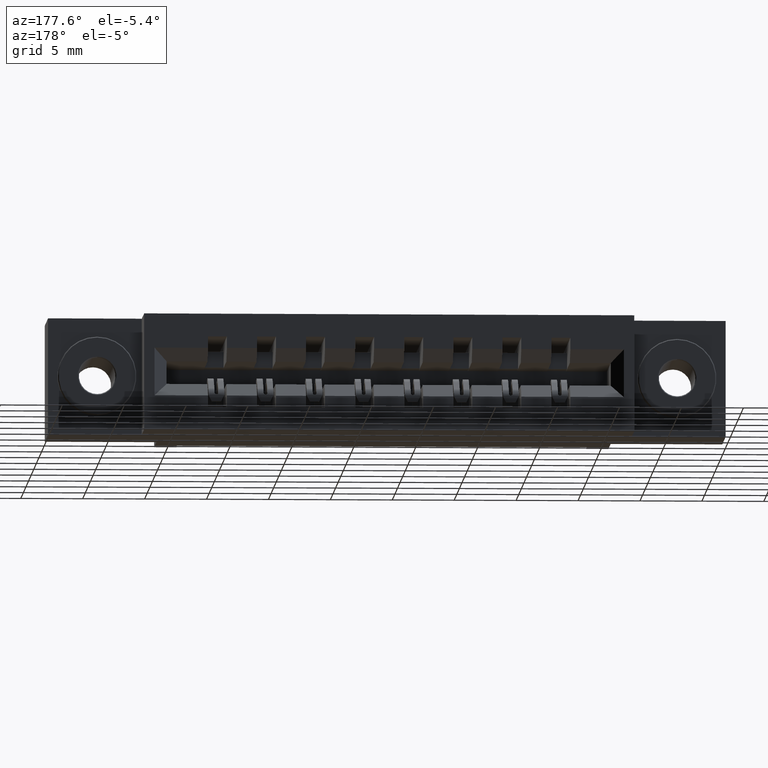
[diagram: clean part render]
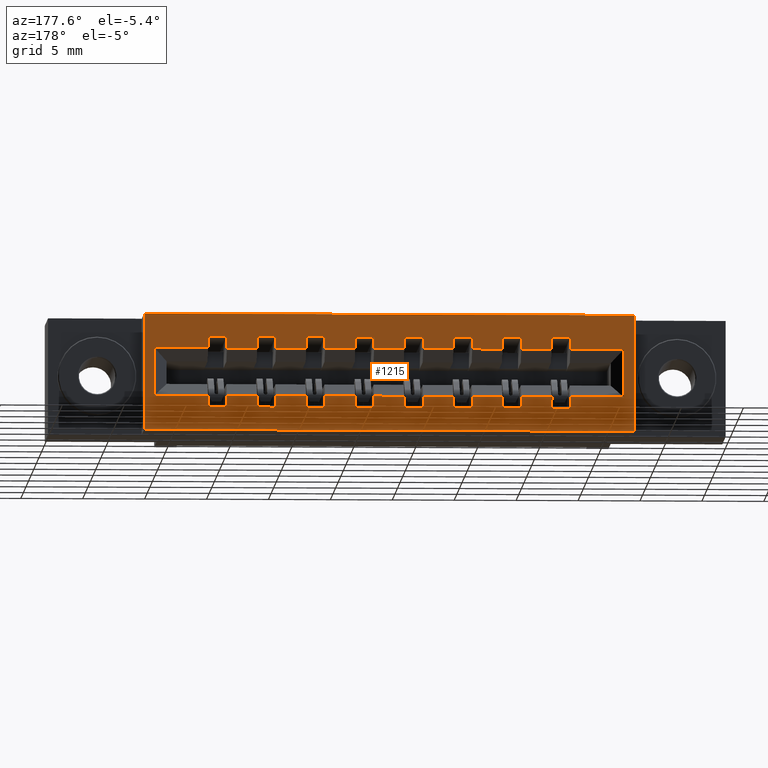
[diagram: same view with one face highlighted and labeled with its STEP entity id]
A machine part, auxiliary view. The second image highlights one B-rep face of the part: STEP entity #1215.
In plain terms, the highlighted planar face has unit normal (0, -1, 0).
Its self-contained STEP definition (entity closure, byte-faithful):
#3 = VECTOR ( 'NONE', #5139, 39.37007874015748100 ) ;
#48 = LINE ( 'NONE', #8474, #715 ) ;
#62 = VERTEX_POINT ( 'NONE', #8847 ) ;
#126 = EDGE_CURVE ( 'NONE', #4012, #3875, #7335, .T. ) ;
#163 = LINE ( 'NONE', #10531, #7812 ) ;
#185 = VECTOR ( 'NONE', #8187, 39.37007874015748100 ) ;
#231 = CARTESIAN_POINT ( 'NONE',  ( 0.5610000000000000500, 0.5999999999999999800, -0.2974999999999999900 ) ) ;
#239 = VECTOR ( 'NONE', #10000, 39.37007874015748100 ) ;
#279 = VERTEX_POINT ( 'NONE', #9263 ) ;
#280 = CARTESIAN_POINT ( 'NONE',  ( 0.0000000000000000000, 0.5999999999999999800, -0.2609999999999999000 ) ) ;
#304 = LINE ( 'NONE', #1450, #2215 ) ;
#322 = CARTESIAN_POINT ( 'NONE',  ( 1.823000000000000000, 0.5999999999999999800, -0.1090000000000002600 ) ) ;
#323 = FACE_BOUND ( 'NONE', #4816, .T. ) ;
#335 = ORIENTED_EDGE ( 'NONE', *, *, #2380, .T. ) ;
#343 = LINE ( 'NONE', #7358, #4155 ) ;
#391 = VERTEX_POINT ( 'NONE', #2153 ) ;
#420 = VERTEX_POINT ( 'NONE', #9855 ) ;
#427 = DIRECTION ( 'NONE',  ( 1.000000000000000000, -0.0000000000000000000, -0.0000000000000000000 ) ) ;
#478 = VECTOR ( 'NONE', #1951, 39.37007874015748100 ) ;
#489 = EDGE_CURVE ( 'NONE', #5118, #1441, #1696, .T. ) ;
#494 = CARTESIAN_POINT ( 'NONE',  ( 0.0000000000000000000, 0.5999999999999999800, -0.2609999999999999000 ) ) ;
#498 = LINE ( 'NONE', #6464, #239 ) ;
#504 = DIRECTION ( 'NONE',  ( 0.0000000000000000000, 0.0000000000000000000, 1.000000000000000000 ) ) ;
#538 = CARTESIAN_POINT ( 'NONE',  ( 0.5610000000000000500, 0.5999999999999999800, -0.2974999999999999900 ) ) ;
#548 = VERTEX_POINT ( 'NONE', #8778 ) ;
#582 = VERTEX_POINT ( 'NONE', #2842 ) ;
#588 = EDGE_CURVE ( 'NONE', #5592, #2311, #10157, .T. ) ;
#598 = DIRECTION ( 'NONE',  ( 0.0000000000000000000, 0.0000000000000000000, 1.000000000000000000 ) ) ;
#611 = DIRECTION ( 'NONE',  ( 0.0000000000000000000, 0.0000000000000000000, 1.000000000000000000 ) ) ;
#622 = CARTESIAN_POINT ( 'NONE',  ( 1.280999999999999700, 0.5999999999999999800, -0.07249999999999996700 ) ) ;
#673 = DIRECTION ( 'NONE',  ( 1.000000000000000000, 0.0000000000000000000, 0.0000000000000000000 ) ) ;
#678 = VECTOR ( 'NONE', #8271, 39.37007874015748100 ) ;
#691 = VECTOR ( 'NONE', #10344, 39.37007874015748100 ) ;
#698 = VERTEX_POINT ( 'NONE', #322 ) ;
#703 = LINE ( 'NONE', #6606, #8365 ) ;
#715 = VECTOR ( 'NONE', #11077, 39.37007874015748100 ) ;
#726 = EDGE_CURVE ( 'NONE', #985, #62, #4827, .T. ) ;
#737 = DIRECTION ( 'NONE',  ( 1.000000000000000000, -0.0000000000000000000, -0.0000000000000000000 ) ) ;
#770 = DIRECTION ( 'NONE',  ( 0.0000000000000000000, -0.0000000000000000000, -1.000000000000000000 ) ) ;
#803 = CARTESIAN_POINT ( 'NONE',  ( 0.8129999999999999400, 0.5999999999999999800, -0.2609999999999999500 ) ) ;
#816 = VECTOR ( 'NONE', #5092, 39.37007874015748100 ) ;
#826 = LINE ( 'NONE', #5257, #5329 ) ;
#835 = LINE ( 'NONE', #8730, #1118 ) ;
#858 = CARTESIAN_POINT ( 'NONE',  ( 0.9689999999999998600, 0.5999999999999999800, -0.07249999999999998100 ) ) ;
#867 = VECTOR ( 'NONE', #5861, 39.37007874015748100 ) ;
#899 = VERTEX_POINT ( 'NONE', #977 ) ;
#907 = ORIENTED_EDGE ( 'NONE', *, *, #2684, .T. ) ;
#911 = VERTEX_POINT ( 'NONE', #6216 ) ;
#931 = CARTESIAN_POINT ( 'NONE',  ( 0.5610000000000000500, 0.5999999999999999800, -0.07250000000000000900 ) ) ;
#977 = CARTESIAN_POINT ( 'NONE',  ( 1.340999999999999700, 0.5999999999999999800, -0.07249999999999996700 ) ) ;
#985 = VERTEX_POINT ( 'NONE', #4780 ) ;
#1008 = LINE ( 'NONE', #7436, #6475 ) ;
#1043 = CARTESIAN_POINT ( 'NONE',  ( 1.184999999999999800, 0.5999999999999999800, -0.2974999999999999900 ) ) ;
#1070 = CARTESIAN_POINT ( 'NONE',  ( 0.6570000000000000300, 0.5999999999999999800, -0.2974999999999999900 ) ) ;
#1109 = CARTESIAN_POINT ( 'NONE',  ( 0.5010000000000001100, 0.5999999999999999800, -0.2974999999999999900 ) ) ;
#1118 = VECTOR ( 'NONE', #9680, 39.37007874015748100 ) ;
#1122 = CARTESIAN_POINT ( 'NONE',  ( 1.496999999999999900, 0.5999999999999999800, -0.2609999999999999500 ) ) ;
#1125 = VECTOR ( 'NONE', #6075, 39.37007874015748100 ) ;
#1158 = EDGE_CURVE ( 'NONE', #8290, #6761, #4557, .T. ) ;
#1173 = DIRECTION ( 'NONE',  ( 0.0000000000000000000, 0.0000000000000000000, 1.000000000000000000 ) ) ;
#1175 = VECTOR ( 'NONE', #6356, 39.37007874015748100 ) ;
#1177 = VERTEX_POINT ( 'NONE', #3393 ) ;
#1178 = CARTESIAN_POINT ( 'NONE',  ( 0.0000000000000000000, 0.5999999999999999800, 0.0000000000000000000 ) ) ;
#1205 = DIRECTION ( 'NONE',  ( 0.0000000000000000000, 0.0000000000000000000, 1.000000000000000000 ) ) ;
#1215 = ADVANCED_FACE ( 'NONE', ( #6591, #323 ), #6834, .F. ) ;
#1221 = EDGE_CURVE ( 'NONE', #4046, #899, #9073, .T. ) ;
#1228 = VERTEX_POINT ( 'NONE', #6874 ) ;
#1245 = LINE ( 'NONE', #6741, #6455 ) ;
#1344 = DIRECTION ( 'NONE',  ( 0.0000000000000000000, 0.0000000000000000000, 1.000000000000000000 ) ) ;
#1441 = VERTEX_POINT ( 'NONE', #7391 ) ;
#1450 = CARTESIAN_POINT ( 'NONE',  ( 0.0000000000000000000, 0.5999999999999999800, -0.2609999999999999000 ) ) ;
#1457 = LINE ( 'NONE', #9476, #3363 ) ;
#1458 = VERTEX_POINT ( 'NONE', #8284 ) ;
#1471 = VERTEX_POINT ( 'NONE', #3074 ) ;
#1482 = VERTEX_POINT ( 'NONE', #7762 ) ;
#1577 = CARTESIAN_POINT ( 'NONE',  ( 0.0000000000000000000, 0.5999999999999999800, -0.3700000000000001600 ) ) ;
#1585 = ORIENTED_EDGE ( 'NONE', *, *, #6827, .F. ) ;
#1616 = EDGE_CURVE ( 'NONE', #8971, #8332, #1245, .T. ) ;
#1634 = ORIENTED_EDGE ( 'NONE', *, *, #9557, .F. ) ;
#1696 = LINE ( 'NONE', #5056, #867 ) ;
#1700 = DIRECTION ( 'NONE',  ( 0.0000000000000000000, 0.0000000000000000000, 1.000000000000000000 ) ) ;
#1715 = CARTESIAN_POINT ( 'NONE',  ( 0.7170000000000000800, 0.5999999999999999800, -0.2974999999999999900 ) ) ;
#1718 = CARTESIAN_POINT ( 'NONE',  ( 1.340999999999999700, 0.5999999999999999800, -0.2974999999999999900 ) ) ;
#1773 = CARTESIAN_POINT ( 'NONE',  ( 0.8129999999999999400, 0.5999999999999999800, -0.2974999999999999900 ) ) ;
#1782 = VERTEX_POINT ( 'NONE', #8254 ) ;
#1809 = DIRECTION ( 'NONE',  ( 0.0000000000000000000, 0.0000000000000000000, 1.000000000000000000 ) ) ;
#1827 = CARTESIAN_POINT ( 'NONE',  ( 0.5010000000000001100, 0.5999999999999999800, -0.2974999999999999900 ) ) ;
#1834 = CARTESIAN_POINT ( 'NONE',  ( 1.437000000000000100, 0.5999999999999999800, -0.2609999999999999500 ) ) ;
#1842 = EDGE_CURVE ( 'NONE', #698, #8290, #2073, .T. ) ;
#1847 = VERTEX_POINT ( 'NONE', #5863 ) ;
#1866 = CARTESIAN_POINT ( 'NONE',  ( 1.437000000000000100, 0.5999999999999999800, -0.07249999999999995300 ) ) ;
#1935 = VERTEX_POINT ( 'NONE', #7193 ) ;
#1951 = DIRECTION ( 'NONE',  ( 1.000000000000000000, -0.0000000000000000000, -0.0000000000000000000 ) ) ;
#1956 = CARTESIAN_POINT ( 'NONE',  ( 0.0000000000000000000, 0.5999999999999999800, -0.1090000000000002600 ) ) ;
#1996 = EDGE_CURVE ( 'NONE', #1471, #10895, #304, .T. ) ;
#2025 = ORIENTED_EDGE ( 'NONE', *, *, #6457, .T. ) ;
#2052 = LINE ( 'NONE', #10333, #3 ) ;
#2073 = LINE ( 'NONE', #9712, #2884 ) ;
#2108 = LINE ( 'NONE', #8137, #3180 ) ;
#2153 = CARTESIAN_POINT ( 'NONE',  ( 1.653000000000000000, 0.5999999999999999800, -0.2974999999999999300 ) ) ;
#2161 = LINE ( 'NONE', #8152, #10732 ) ;
#2174 = DIRECTION ( 'NONE',  ( -1.000000000000000000, 0.0000000000000000000, 0.0000000000000000000 ) ) ;
#2189 = VECTOR ( 'NONE', #9440, 39.37007874015748100 ) ;
#2215 = VECTOR ( 'NONE', #11228, 39.37007874015748100 ) ;
#2242 = LINE ( 'NONE', #9684, #10683 ) ;
#2256 = EDGE_CURVE ( 'NONE', #9944, #2812, #10254, .T. ) ;
#2260 = ORIENTED_EDGE ( 'NONE', *, *, #5841, .T. ) ;
#2267 = DIRECTION ( 'NONE',  ( 1.000000000000000000, -0.0000000000000000000, -0.0000000000000000000 ) ) ;
#2290 = DIRECTION ( 'NONE',  ( -0.0000000000000000000, -0.0000000000000000000, 1.000000000000000000 ) ) ;
#2311 = VERTEX_POINT ( 'NONE', #8000 ) ;
#2312 = LINE ( 'NONE', #7454, #2189 ) ;
#2345 = VECTOR ( 'NONE', #8401, 39.37007874015748100 ) ;
#2358 = VECTOR ( 'NONE', #7739, 39.37007874015748100 ) ;
#2361 = VECTOR ( 'NONE', #10820, 39.37007874015748100 ) ;
#2378 = CARTESIAN_POINT ( 'NONE',  ( 1.280999999999999700, 0.5999999999999999800, -0.2974999999999999900 ) ) ;
#2380 = EDGE_CURVE ( 'NONE', #4088, #5543, #9056, .T. ) ;
#2384 = LINE ( 'NONE', #4174, #4165 ) ;
#2402 = ORIENTED_EDGE ( 'NONE', *, *, #4718, .F. ) ;
#2408 = ORIENTED_EDGE ( 'NONE', *, *, #4470, .T. ) ;
#2439 = CARTESIAN_POINT ( 'NONE',  ( 1.593000000000000200, 0.5999999999999999800, -0.07249999999999993900 ) ) ;
#2462 = CARTESIAN_POINT ( 'NONE',  ( 0.9689999999999998600, 0.5999999999999999800, -0.2974999999999999900 ) ) ;
#2465 = ORIENTED_EDGE ( 'NONE', *, *, #6482, .T. ) ;
#2466 = VECTOR ( 'NONE', #1205, 39.37007874015748100 ) ;
#2476 = VERTEX_POINT ( 'NONE', #9833 ) ;
#2481 = VECTOR ( 'NONE', #9724, 39.37007874015748100 ) ;
#2497 = LINE ( 'NONE', #11246, #1125 ) ;
#2546 = ORIENTED_EDGE ( 'NONE', *, *, #8787, .F. ) ;
#2548 = LINE ( 'NONE', #10206, #5830 ) ;
#2572 = ORIENTED_EDGE ( 'NONE', *, *, #9653, .F. ) ;
#2598 = EDGE_CURVE ( 'NONE', #1177, #5263, #498, .T. ) ;
#2624 = VECTOR ( 'NONE', #10037, 39.37007874015748100 ) ;
#2684 = EDGE_CURVE ( 'NONE', #391, #985, #6383, .T. ) ;
#2686 = LINE ( 'NONE', #10168, #6662 ) ;
#2732 = VECTOR ( 'NONE', #5617, 39.37007874015748100 ) ;
#2764 = VECTOR ( 'NONE', #2290, 39.37007874015748100 ) ;
#2797 = VERTEX_POINT ( 'NONE', #10471 ) ;
#2811 = CARTESIAN_POINT ( 'NONE',  ( 0.6570000000000000300, 0.5999999999999999800, -0.07250000000000000900 ) ) ;
#2812 = VERTEX_POINT ( 'NONE', #5252 ) ;
#2840 = ORIENTED_EDGE ( 'NONE', *, *, #9797, .T. ) ;
#2842 = CARTESIAN_POINT ( 'NONE',  ( 0.9689999999999998600, 0.5999999999999999800, -0.1090000000000002400 ) ) ;
#2884 = VECTOR ( 'NONE', #7149, 39.37007874015748100 ) ;
#2885 = DIRECTION ( 'NONE',  ( -1.000000000000000000, 0.0000000000000000000, 0.0000000000000000000 ) ) ;
#2913 = DIRECTION ( 'NONE',  ( 0.0000000000000000000, 0.0000000000000000000, 1.000000000000000000 ) ) ;
#2948 = DIRECTION ( 'NONE',  ( -1.000000000000000000, 0.0000000000000000000, 0.0000000000000000000 ) ) ;
#2960 = ORIENTED_EDGE ( 'NONE', *, *, #6982, .F. ) ;
#2972 = ORIENTED_EDGE ( 'NONE', *, *, #9676, .F. ) ;
#2985 = CARTESIAN_POINT ( 'NONE',  ( 1.593000000000000200, 0.5999999999999999800, -0.2974999999999999300 ) ) ;
#2992 = CARTESIAN_POINT ( 'NONE',  ( 0.8129999999999999400, 0.5999999999999999800, -0.07249999999999999500 ) ) ;
#2994 = VECTOR ( 'NONE', #11076, 39.37007874015748100 ) ;
#2997 = CARTESIAN_POINT ( 'NONE',  ( 1.184999999999999800, 0.5999999999999999800, -0.07249999999999996700 ) ) ;
#3005 = CARTESIAN_POINT ( 'NONE',  ( 0.5010000000000001100, 0.5999999999999999800, -0.07250000000000000900 ) ) ;
#3011 = VERTEX_POINT ( 'NONE', #1043 ) ;
#3033 = EDGE_CURVE ( 'NONE', #3578, #4088, #3069, .T. ) ;
#3037 = LINE ( 'NONE', #2378, #8513 ) ;
#3045 = LINE ( 'NONE', #11124, #3325 ) ;
#3066 = ORIENTED_EDGE ( 'NONE', *, *, #3850, .T. ) ;
#3069 = LINE ( 'NONE', #1773, #10834 ) ;
#3071 = CARTESIAN_POINT ( 'NONE',  ( 0.7170000000000000800, 0.5999999999999999800, -0.07250000000000000900 ) ) ;
#3074 = CARTESIAN_POINT ( 'NONE',  ( 0.3310000000000001800, 0.5999999999999999800, -0.2609999999999999000 ) ) ;
#3091 = EDGE_CURVE ( 'NONE', #8357, #10050, #3892, .T. ) ;
#3096 = DIRECTION ( 'NONE',  ( 1.000000000000000000, -0.0000000000000000000, -0.0000000000000000000 ) ) ;
#3151 = ORIENTED_EDGE ( 'NONE', *, *, #489, .F. ) ;
#3167 = LINE ( 'NONE', #9365, #6052 ) ;
#3176 = CARTESIAN_POINT ( 'NONE',  ( 1.124999999999999800, 0.5999999999999999800, -0.2974999999999999900 ) ) ;
#3178 = EDGE_CURVE ( 'NONE', #582, #9944, #9368, .T. ) ;
#3180 = VECTOR ( 'NONE', #2885, 39.37007874015748100 ) ;
#3193 = EDGE_CURVE ( 'NONE', #3729, #10747, #2384, .T. ) ;
#3195 = DIRECTION ( 'NONE',  ( 0.0000000000000000000, 0.0000000000000000000, 1.000000000000000000 ) ) ;
#3281 = LINE ( 'NONE', #3176, #691 ) ;
#3288 = ORIENTED_EDGE ( 'NONE', *, *, #8182, .F. ) ;
#3291 = VECTOR ( 'NONE', #4319, 39.37007874015748100 ) ;
#3311 = DIRECTION ( 'NONE',  ( -1.000000000000000000, 0.0000000000000000000, 0.0000000000000000000 ) ) ;
#3325 = VECTOR ( 'NONE', #1700, 39.37007874015748100 ) ;
#3363 = VECTOR ( 'NONE', #673, 39.37007874015748100 ) ;
#3393 = CARTESIAN_POINT ( 'NONE',  ( 0.6570000000000000300, 0.5999999999999999800, -0.1090000000000002200 ) ) ;
#3488 = VECTOR ( 'NONE', #3195, 39.37007874015748100 ) ;
#3495 = VERTEX_POINT ( 'NONE', #10405 ) ;
#3498 = CARTESIAN_POINT ( 'NONE',  ( 0.8129999999999999400, 0.5999999999999999800, -0.2974999999999999900 ) ) ;
#3508 = ORIENTED_EDGE ( 'NONE', *, *, #6171, .F. ) ;
#3578 = VERTEX_POINT ( 'NONE', #3498 ) ;
#3598 = EDGE_CURVE ( 'NONE', #9392, #1935, #7071, .T. ) ;
#3643 = VERTEX_POINT ( 'NONE', #6635 ) ;
#3667 = CARTESIAN_POINT ( 'NONE',  ( 1.184999999999999800, 0.5999999999999999800, -0.1090000000000002600 ) ) ;
#3686 = CARTESIAN_POINT ( 'NONE',  ( 1.340999999999999700, 0.5999999999999999800, -0.1090000000000002600 ) ) ;
#3724 = EDGE_CURVE ( 'NONE', #10933, #9919, #8262, .T. ) ;
#3729 = VERTEX_POINT ( 'NONE', #5445 ) ;
#3744 = ORIENTED_EDGE ( 'NONE', *, *, #7885, .T. ) ;
#3773 = ORIENTED_EDGE ( 'NONE', *, *, #6120, .F. ) ;
#3774 = VERTEX_POINT ( 'NONE', #6352 ) ;
#3784 = EDGE_CURVE ( 'NONE', #10711, #9666, #343, .T. ) ;
#3804 = DIRECTION ( 'NONE',  ( 0.0000000000000000000, 0.0000000000000000000, 1.000000000000000000 ) ) ;
#3836 = EDGE_CURVE ( 'NONE', #3578, #7509, #1008, .T. ) ;
#3850 = EDGE_CURVE ( 'NONE', #279, #3729, #2108, .T. ) ;
#3875 = VERTEX_POINT ( 'NONE', #9765 ) ;
#3890 = VERTEX_POINT ( 'NONE', #5628 ) ;
#3892 = LINE ( 'NONE', #538, #6086 ) ;
#3912 = ORIENTED_EDGE ( 'NONE', *, *, #7151, .F. ) ;
#3950 = VERTEX_POINT ( 'NONE', #10582 ) ;
#3959 = ORIENTED_EDGE ( 'NONE', *, *, #1842, .T. ) ;
#3976 = CARTESIAN_POINT ( 'NONE',  ( 0.5010000000000001100, 0.5999999999999999800, -0.2609999999999999500 ) ) ;
#3977 = CARTESIAN_POINT ( 'NONE',  ( 1.437000000000000100, 0.5999999999999999800, -0.07249999999999995300 ) ) ;
#4001 = EDGE_CURVE ( 'NONE', #5421, #5860, #2242, .T. ) ;
#4009 = VECTOR ( 'NONE', #9072, 39.37007874015748100 ) ;
#4012 = VERTEX_POINT ( 'NONE', #1866 ) ;
#4028 = CARTESIAN_POINT ( 'NONE',  ( 0.7170000000000000800, 0.5999999999999999800, -0.2609999999999999500 ) ) ;
#4041 = ORIENTED_EDGE ( 'NONE', *, *, #4263, .F. ) ;
#4046 = VERTEX_POINT ( 'NONE', #3686 ) ;
#4054 = ORIENTED_EDGE ( 'NONE', *, *, #4001, .T. ) ;
#4088 = VERTEX_POINT ( 'NONE', #4644 ) ;
#4135 = CARTESIAN_POINT ( 'NONE',  ( 0.6570000000000000300, 0.5999999999999999800, -0.2974999999999999900 ) ) ;
#4154 = VERTEX_POINT ( 'NONE', #10936 ) ;
#4155 = VECTOR ( 'NONE', #427, 39.37007874015748100 ) ;
#4165 = VECTOR ( 'NONE', #611, 39.37007874015748100 ) ;
#4170 = VERTEX_POINT ( 'NONE', #10897 ) ;
#4174 = CARTESIAN_POINT ( 'NONE',  ( 0.7170000000000000800, 0.5999999999999999800, -0.2974999999999999900 ) ) ;
#4187 = CARTESIAN_POINT ( 'NONE',  ( 0.8730000000000000000, 0.5999999999999999800, -0.2974999999999999900 ) ) ;
#4209 = DIRECTION ( 'NONE',  ( 0.0000000000000000000, 0.0000000000000000000, 1.000000000000000000 ) ) ;
#4217 = CARTESIAN_POINT ( 'NONE',  ( 0.9689999999999998600, 0.5999999999999999800, -0.2974999999999999900 ) ) ;
#4223 = VECTOR ( 'NONE', #6103, 39.37007874015748100 ) ;
#4237 = CARTESIAN_POINT ( 'NONE',  ( 0.2980000000000001000, 0.5999999999999999800, -0.3700000000000001600 ) ) ;
#4263 = EDGE_CURVE ( 'NONE', #10711, #2476, #3037, .T. ) ;
#4264 = ORIENTED_EDGE ( 'NONE', *, *, #3091, .T. ) ;
#4272 = VECTOR ( 'NONE', #9756, 39.37007874015748100 ) ;
#4317 = CARTESIAN_POINT ( 'NONE',  ( 1.593000000000000200, 0.5999999999999999800, -0.2974999999999999300 ) ) ;
#4319 = DIRECTION ( 'NONE',  ( 1.000000000000000000, -0.0000000000000000000, -0.0000000000000000000 ) ) ;
#4351 = CARTESIAN_POINT ( 'NONE',  ( 0.9689999999999998600, 0.5999999999999999800, -0.07249999999999998100 ) ) ;
#4364 = CARTESIAN_POINT ( 'NONE',  ( 0.5010000000000001100, 0.5999999999999999800, -0.2974999999999999900 ) ) ;
#4372 = LINE ( 'NONE', #5096, #10873 ) ;
#4432 = ORIENTED_EDGE ( 'NONE', *, *, #10434, .T. ) ;
#4435 = DIRECTION ( 'NONE',  ( 0.0000000000000000000, 0.0000000000000000000, 1.000000000000000000 ) ) ;
#4470 = EDGE_CURVE ( 'NONE', #8221, #7509, #6895, .T. ) ;
#4520 = DIRECTION ( 'NONE',  ( 1.000000000000000000, -0.0000000000000000000, -0.0000000000000000000 ) ) ;
#4544 = EDGE_CURVE ( 'NONE', #3643, #3495, #5905, .T. ) ;
#4553 = LINE ( 'NONE', #10614, #4272 ) ;
#4557 = LINE ( 'NONE', #8568, #2358 ) ;
#4559 = EDGE_CURVE ( 'NONE', #4170, #8151, #10269, .T. ) ;
#4609 = EDGE_CURVE ( 'NONE', #7670, #8061, #5629, .T. ) ;
#4640 = ORIENTED_EDGE ( 'NONE', *, *, #10493, .F. ) ;
#4641 = DIRECTION ( 'NONE',  ( -1.000000000000000000, 0.0000000000000000000, 0.0000000000000000000 ) ) ;
#4643 = LINE ( 'NONE', #8238, #5447 ) ;
#4644 = CARTESIAN_POINT ( 'NONE',  ( 0.8730000000000000000, 0.5999999999999999800, -0.2974999999999999900 ) ) ;
#4650 = EDGE_CURVE ( 'NONE', #6143, #3495, #5352, .T. ) ;
#4679 = LINE ( 'NONE', #8621, #3291 ) ;
#4718 = EDGE_CURVE ( 'NONE', #3950, #4012, #48, .T. ) ;
#4755 = EDGE_CURVE ( 'NONE', #9825, #6761, #6756, .T. ) ;
#4780 = CARTESIAN_POINT ( 'NONE',  ( 1.653000000000000000, 0.5999999999999999800, -0.2609999999999999500 ) ) ;
#4804 = EDGE_CURVE ( 'NONE', #1782, #1482, #703, .T. ) ;
#4816 = EDGE_LOOP ( 'NONE', ( #3773, #9066, #907, #4911, #7060, #3959, #5567, #11208, #1585, #8915, #5570, #10865, #2402, #5152, #7292, #2546, #3151, #2260, #7589, #2972, #1634, #2840, #7985, #5310, #3912, #9769, #6218, #7463, #6558, #3066, #7756, #3508, #9594, #6137, #4264, #6028, #2572, #7361, #8351, #7381, #10767, #11114, #5475, #4856, #4640, #5517, #7787, #2408, #6875, #8655, #335, #3744, #8825, #2465, #6603, #11261, #6026, #2025, #5193, #4432, #4041, #10082, #8437, #6085, #3288, #9281, #4054, #5258 ) ) ;
#4827 = LINE ( 'NONE', #7441, #4009 ) ;
#4856 = ORIENTED_EDGE ( 'NONE', *, *, #5516, .T. ) ;
#4911 = ORIENTED_EDGE ( 'NONE', *, *, #726, .T. ) ;
#4958 = LINE ( 'NONE', #1715, #7055 ) ;
#5034 = EDGE_CURVE ( 'NONE', #7645, #9392, #4679, .T. ) ;
#5056 = CARTESIAN_POINT ( 'NONE',  ( 1.280999999999999700, 0.5999999999999999800, -0.2974999999999999900 ) ) ;
#5057 = DIRECTION ( 'NONE',  ( 0.0000000000000000000, 0.0000000000000000000, 1.000000000000000000 ) ) ;
#5058 = LINE ( 'NONE', #2462, #9448 ) ;
#5092 = DIRECTION ( 'NONE',  ( 1.000000000000000000, 0.0000000000000000000, 0.0000000000000000000 ) ) ;
#5096 = CARTESIAN_POINT ( 'NONE',  ( 0.0000000000000000000, 0.5999999999999999800, -0.3700000000000001600 ) ) ;
#5108 = DIRECTION ( 'NONE',  ( 0.0000000000000000000, 0.0000000000000000000, 1.000000000000000000 ) ) ;
#5118 = VERTEX_POINT ( 'NONE', #10438 ) ;
#5139 = DIRECTION ( 'NONE',  ( 1.000000000000000000, 0.0000000000000000000, 0.0000000000000000000 ) ) ;
#5152 = ORIENTED_EDGE ( 'NONE', *, *, #9126, .T. ) ;
#5158 = LINE ( 'NONE', #8494, #5439 ) ;
#5193 = ORIENTED_EDGE ( 'NONE', *, *, #7253, .T. ) ;
#5210 = CARTESIAN_POINT ( 'NONE',  ( 0.5610000000000000500, 0.5999999999999999800, -0.2974999999999999900 ) ) ;
#5230 = EDGE_CURVE ( 'NONE', #7645, #10895, #8096, .T. ) ;
#5252 = CARTESIAN_POINT ( 'NONE',  ( 0.8730000000000000000, 0.5999999999999999800, -0.07249999999999999500 ) ) ;
#5257 = CARTESIAN_POINT ( 'NONE',  ( 1.340999999999999700, 0.5999999999999999800, -0.2974999999999999900 ) ) ;
#5258 = ORIENTED_EDGE ( 'NONE', *, *, #10027, .T. ) ;
#5263 = VERTEX_POINT ( 'NONE', #2811 ) ;
#5307 = DIRECTION ( 'NONE',  ( 1.000000000000000000, -0.0000000000000000000, -0.0000000000000000000 ) ) ;
#5309 = DIRECTION ( 'NONE',  ( 1.000000000000000000, -0.0000000000000000000, -0.0000000000000000000 ) ) ;
#5310 = ORIENTED_EDGE ( 'NONE', *, *, #588, .F. ) ;
#5329 = VECTOR ( 'NONE', #1809, 39.37007874015748100 ) ;
#5352 = LINE ( 'NONE', #8400, #2764 ) ;
#5418 = VERTEX_POINT ( 'NONE', #8344 ) ;
#5421 = VERTEX_POINT ( 'NONE', #8059 ) ;
#5439 = VECTOR ( 'NONE', #5896, 39.37007874015748100 ) ;
#5445 = CARTESIAN_POINT ( 'NONE',  ( 0.7170000000000000800, 0.5999999999999999800, -0.1090000000000002600 ) ) ;
#5447 = VECTOR ( 'NONE', #9095, 39.37007874015748100 ) ;
#5475 = ORIENTED_EDGE ( 'NONE', *, *, #3598, .T. ) ;
#5516 = EDGE_CURVE ( 'NONE', #1935, #2797, #9577, .T. ) ;
#5517 = ORIENTED_EDGE ( 'NONE', *, *, #3724, .T. ) ;
#5525 = CARTESIAN_POINT ( 'NONE',  ( 1.124999999999999800, 0.5999999999999999800, -0.2974999999999999900 ) ) ;
#5543 = VERTEX_POINT ( 'NONE', #10207 ) ;
#5567 = ORIENTED_EDGE ( 'NONE', *, *, #1158, .T. ) ;
#5570 = ORIENTED_EDGE ( 'NONE', *, *, #11206, .T. ) ;
#5575 = LINE ( 'NONE', #8670, #9427 ) ;
#5592 = VERTEX_POINT ( 'NONE', #4351 ) ;
#5605 = DIRECTION ( 'NONE',  ( 1.000000000000000000, 0.0000000000000000000, 0.0000000000000000000 ) ) ;
#5617 = DIRECTION ( 'NONE',  ( 0.0000000000000000000, 0.0000000000000000000, 1.000000000000000000 ) ) ;
#5628 = CARTESIAN_POINT ( 'NONE',  ( 1.437000000000000100, 0.5999999999999999800, -0.2974999999999999300 ) ) ;
#5629 = LINE ( 'NONE', #6608, #2624 ) ;
#5691 = EDGE_CURVE ( 'NONE', #4154, #8151, #6019, .T. ) ;
#5791 = CARTESIAN_POINT ( 'NONE',  ( 1.653000000000000000, 0.5999999999999999800, -0.2974999999999999300 ) ) ;
#5830 = VECTOR ( 'NONE', #10521, 39.37007874015748100 ) ;
#5841 = EDGE_CURVE ( 'NONE', #5118, #7670, #6433, .T. ) ;
#5860 = VERTEX_POINT ( 'NONE', #1122 ) ;
#5861 = DIRECTION ( 'NONE',  ( 0.0000000000000000000, 0.0000000000000000000, 1.000000000000000000 ) ) ;
#5863 = CARTESIAN_POINT ( 'NONE',  ( 1.593000000000000200, 0.5999999999999999800, -0.1090000000000002200 ) ) ;
#5896 = DIRECTION ( 'NONE',  ( 0.0000000000000000000, 0.0000000000000000000, 1.000000000000000000 ) ) ;
#5902 = LINE ( 'NONE', #1956, #9731 ) ;
#5905 = LINE ( 'NONE', #1178, #9473 ) ;
#5977 = CARTESIAN_POINT ( 'NONE',  ( 0.7170000000000000800, 0.5999999999999999800, -0.2974999999999999900 ) ) ;
#5991 = ORIENTED_EDGE ( 'NONE', *, *, #7388, .T. ) ;
#6002 = AXIS2_PLACEMENT_3D ( 'NONE', #1577, #11193, #770 ) ;
#6019 = LINE ( 'NONE', #10309, #816 ) ;
#6021 = DIRECTION ( 'NONE',  ( -1.000000000000000000, -0.0000000000000000000, -6.341337032646850900E-017 ) ) ;
#6026 = ORIENTED_EDGE ( 'NONE', *, *, #4559, .F. ) ;
#6028 = ORIENTED_EDGE ( 'NONE', *, *, #8392, .F. ) ;
#6052 = VECTOR ( 'NONE', #5108, 39.37007874015748100 ) ;
#6075 = DIRECTION ( 'NONE',  ( 1.000000000000000000, -0.0000000000000000000, -0.0000000000000000000 ) ) ;
#6081 = CARTESIAN_POINT ( 'NONE',  ( 0.0000000000000000000, 0.5999999999999999800, -0.2609999999999999000 ) ) ;
#6084 = EDGE_CURVE ( 'NONE', #1847, #911, #8205, .T. ) ;
#6085 = ORIENTED_EDGE ( 'NONE', *, *, #6813, .T. ) ;
#6086 = VECTOR ( 'NONE', #2913, 39.37007874015748100 ) ;
#6103 = DIRECTION ( 'NONE',  ( 0.0000000000000000000, 0.0000000000000000000, 1.000000000000000000 ) ) ;
#6113 = DIRECTION ( 'NONE',  ( 0.0000000000000000000, 0.0000000000000000000, 1.000000000000000000 ) ) ;
#6120 = EDGE_CURVE ( 'NONE', #7343, #3774, #7409, .T. ) ;
#6135 = VECTOR ( 'NONE', #5057, 39.37007874015748100 ) ;
#6137 = ORIENTED_EDGE ( 'NONE', *, *, #10070, .T. ) ;
#6143 = VERTEX_POINT ( 'NONE', #7549 ) ;
#6166 = VECTOR ( 'NONE', #1173, 39.37007874015748100 ) ;
#6171 = EDGE_CURVE ( 'NONE', #5263, #10747, #163, .T. ) ;
#6216 = CARTESIAN_POINT ( 'NONE',  ( 1.496999999999999900, 0.5999999999999999800, -0.1090000000000002600 ) ) ;
#6218 = ORIENTED_EDGE ( 'NONE', *, *, #2256, .T. ) ;
#6236 = VERTEX_POINT ( 'NONE', #7040 ) ;
#6272 = CARTESIAN_POINT ( 'NONE',  ( 0.6570000000000000300, 0.5999999999999999800, -0.2974999999999999900 ) ) ;
#6352 = CARTESIAN_POINT ( 'NONE',  ( 1.593000000000000200, 0.5999999999999999800, -0.2609999999999999500 ) ) ;
#6356 = DIRECTION ( 'NONE',  ( 1.000000000000000000, -0.0000000000000000000, -0.0000000000000000000 ) ) ;
#6383 = LINE ( 'NONE', #5791, #3488 ) ;
#6418 = CARTESIAN_POINT ( 'NONE',  ( 0.8730000000000000000, 0.5999999999999999800, -0.2974999999999999900 ) ) ;
#6433 = LINE ( 'NONE', #9828, #9164 ) ;
#6455 = VECTOR ( 'NONE', #598, 39.37007874015748100 ) ;
#6457 = EDGE_CURVE ( 'NONE', #4170, #3011, #3281, .T. ) ;
#6464 = CARTESIAN_POINT ( 'NONE',  ( 0.6570000000000000300, 0.5999999999999999800, -0.2974999999999999900 ) ) ;
#6471 = CARTESIAN_POINT ( 'NONE',  ( 0.3310000000000001800, 0.5999999999999999800, -0.3700000000000001600 ) ) ;
#6475 = VECTOR ( 'NONE', #3804, 39.37007874015748100 ) ;
#6482 = EDGE_CURVE ( 'NONE', #8971, #420, #5058, .T. ) ;
#6487 = VECTOR ( 'NONE', #4520, 39.37007874015748100 ) ;
#6558 = ORIENTED_EDGE ( 'NONE', *, *, #8928, .F. ) ;
#6591 = FACE_OUTER_BOUND ( 'NONE', #8159, .T. ) ;
#6595 = CARTESIAN_POINT ( 'NONE',  ( 1.653000000000000000, 0.5999999999999999800, -0.1090000000000002600 ) ) ;
#6603 = ORIENTED_EDGE ( 'NONE', *, *, #7336, .T. ) ;
#6606 = CARTESIAN_POINT ( 'NONE',  ( 0.0000000000000000000, 0.5999999999999999800, -0.1090000000000002600 ) ) ;
#6608 = CARTESIAN_POINT ( 'NONE',  ( 1.184999999999999800, 0.5999999999999999800, -0.2974999999999999900 ) ) ;
#6635 = CARTESIAN_POINT ( 'NONE',  ( 0.2980000000000001000, 0.5999999999999999800, 0.0000000000000000000 ) ) ;
#6662 = VECTOR ( 'NONE', #1344, 39.37007874015748100 ) ;
#6697 = LINE ( 'NONE', #8635, #2994 ) ;
#6741 = CARTESIAN_POINT ( 'NONE',  ( 0.9689999999999998600, 0.5999999999999999800, -0.2974999999999999900 ) ) ;
#6756 = LINE ( 'NONE', #2439, #8644 ) ;
#6761 = VERTEX_POINT ( 'NONE', #10225 ) ;
#6813 = EDGE_CURVE ( 'NONE', #1458, #8516, #2052, .T. ) ;
#6827 = EDGE_CURVE ( 'NONE', #1847, #9825, #5575, .T. ) ;
#6834 = PLANE ( 'NONE',  #6002 ) ;
#6874 = CARTESIAN_POINT ( 'NONE',  ( 1.124999999999999800, 0.5999999999999999800, -0.07249999999999996700 ) ) ;
#6875 = ORIENTED_EDGE ( 'NONE', *, *, #3836, .F. ) ;
#6895 = LINE ( 'NONE', #280, #185 ) ;
#6982 = EDGE_CURVE ( 'NONE', #3643, #9542, #4643, .T. ) ;
#6994 = VERTEX_POINT ( 'NONE', #2992 ) ;
#7016 = DIRECTION ( 'NONE',  ( 0.0000000000000000000, 0.0000000000000000000, 1.000000000000000000 ) ) ;
#7040 = CARTESIAN_POINT ( 'NONE',  ( 1.124999999999999800, 0.5999999999999999800, -0.1090000000000002400 ) ) ;
#7055 = VECTOR ( 'NONE', #10404, 39.37007874015748100 ) ;
#7060 = ORIENTED_EDGE ( 'NONE', *, *, #8312, .T. ) ;
#7071 = LINE ( 'NONE', #5210, #8395 ) ;
#7104 = CARTESIAN_POINT ( 'NONE',  ( 0.5610000000000000500, 0.5999999999999999800, -0.1090000000000002600 ) ) ;
#7149 = DIRECTION ( 'NONE',  ( -1.000000000000000000, 0.0000000000000000000, 0.0000000000000000000 ) ) ;
#7151 = EDGE_CURVE ( 'NONE', #582, #5592, #5158, .T. ) ;
#7166 = CARTESIAN_POINT ( 'NONE',  ( 1.437000000000000100, 0.5999999999999999800, -0.2974999999999999300 ) ) ;
#7193 = CARTESIAN_POINT ( 'NONE',  ( 0.5610000000000000500, 0.5999999999999999800, -0.2609999999999999500 ) ) ;
#7208 = LINE ( 'NONE', #7166, #478 ) ;
#7253 = EDGE_CURVE ( 'NONE', #3011, #7691, #10090, .T. ) ;
#7290 = LINE ( 'NONE', #1070, #6166 ) ;
#7292 = ORIENTED_EDGE ( 'NONE', *, *, #1221, .T. ) ;
#7313 = VECTOR ( 'NONE', #6113, 39.37007874015748100 ) ;
#7332 = DIRECTION ( 'NONE',  ( 0.0000000000000000000, 0.0000000000000000000, 1.000000000000000000 ) ) ;
#7335 = LINE ( 'NONE', #3977, #8397 ) ;
#7336 = EDGE_CURVE ( 'NONE', #420, #4154, #10742, .T. ) ;
#7343 = VERTEX_POINT ( 'NONE', #4317 ) ;
#7358 = CARTESIAN_POINT ( 'NONE',  ( 1.280999999999999700, 0.5999999999999999800, -0.2974999999999999900 ) ) ;
#7361 = ORIENTED_EDGE ( 'NONE', *, *, #4804, .T. ) ;
#7381 = ORIENTED_EDGE ( 'NONE', *, *, #1996, .T. ) ;
#7388 = EDGE_CURVE ( 'NONE', #6143, #9542, #4372, .T. ) ;
#7391 = CARTESIAN_POINT ( 'NONE',  ( 1.280999999999999700, 0.5999999999999999800, -0.07249999999999996700 ) ) ;
#7409 = LINE ( 'NONE', #2985, #2732 ) ;
#7424 = VECTOR ( 'NONE', #8354, 39.37007874015748100 ) ;
#7436 = CARTESIAN_POINT ( 'NONE',  ( 0.8129999999999999400, 0.5999999999999999800, -0.2974999999999999900 ) ) ;
#7441 = CARTESIAN_POINT ( 'NONE',  ( 0.0000000000000000000, 0.5999999999999999800, -0.2609999999999999000 ) ) ;
#7454 = CARTESIAN_POINT ( 'NONE',  ( 1.496999999999999900, 0.5999999999999999800, -0.2974999999999999300 ) ) ;
#7463 = ORIENTED_EDGE ( 'NONE', *, *, #11220, .F. ) ;
#7509 = VERTEX_POINT ( 'NONE', #803 ) ;
#7544 = VECTOR ( 'NONE', #7887, 39.37007874015748100 ) ;
#7549 = CARTESIAN_POINT ( 'NONE',  ( 1.856000000000000100, 0.5999999999999999800, -0.3699999999999998300 ) ) ;
#7565 = CARTESIAN_POINT ( 'NONE',  ( 1.593000000000000200, 0.5999999999999999800, -0.07249999999999993900 ) ) ;
#7589 = ORIENTED_EDGE ( 'NONE', *, *, #4609, .T. ) ;
#7616 = DIRECTION ( 'NONE',  ( 1.000000000000000000, -0.0000000000000000000, -0.0000000000000000000 ) ) ;
#7645 = VERTEX_POINT ( 'NONE', #1109 ) ;
#7670 = VERTEX_POINT ( 'NONE', #3667 ) ;
#7691 = VERTEX_POINT ( 'NONE', #10566 ) ;
#7739 = DIRECTION ( 'NONE',  ( 0.0000000000000000000, 0.0000000000000000000, 1.000000000000000000 ) ) ;
#7756 = ORIENTED_EDGE ( 'NONE', *, *, #3193, .T. ) ;
#7757 = EDGE_CURVE ( 'NONE', #548, #2311, #2161, .T. ) ;
#7762 = CARTESIAN_POINT ( 'NONE',  ( 0.3310000000000001800, 0.5999999999999999800, -0.1090000000000002600 ) ) ;
#7787 = ORIENTED_EDGE ( 'NONE', *, *, #8545, .T. ) ;
#7812 = VECTOR ( 'NONE', #5307, 39.37007874015748100 ) ;
#7885 = EDGE_CURVE ( 'NONE', #5543, #8332, #1457, .T. ) ;
#7887 = DIRECTION ( 'NONE',  ( 1.000000000000000000, 0.0000000000000000000, 0.0000000000000000000 ) ) ;
#7904 = CARTESIAN_POINT ( 'NONE',  ( 1.028999999999999900, 0.5999999999999999800, -0.2974999999999999900 ) ) ;
#7985 = ORIENTED_EDGE ( 'NONE', *, *, #7757, .T. ) ;
#8000 = CARTESIAN_POINT ( 'NONE',  ( 1.028999999999999900, 0.5999999999999999800, -0.07249999999999998100 ) ) ;
#8059 = CARTESIAN_POINT ( 'NONE',  ( 1.496999999999999900, 0.5999999999999999800, -0.2974999999999999300 ) ) ;
#8061 = VERTEX_POINT ( 'NONE', #2997 ) ;
#8075 = CARTESIAN_POINT ( 'NONE',  ( 0.9689999999999998600, 0.5999999999999999800, -0.2609999999999999500 ) ) ;
#8096 = LINE ( 'NONE', #1827, #2481 ) ;
#8137 = CARTESIAN_POINT ( 'NONE',  ( 0.0000000000000000000, 0.5999999999999999800, -0.1090000000000002600 ) ) ;
#8151 = VERTEX_POINT ( 'NONE', #9767 ) ;
#8152 = CARTESIAN_POINT ( 'NONE',  ( 1.028999999999999900, 0.5999999999999999800, -0.2974999999999999900 ) ) ;
#8159 = EDGE_LOOP ( 'NONE', ( #10432, #10953, #5991, #2960 ) ) ;
#8168 = LINE ( 'NONE', #3005, #1175 ) ;
#8182 = EDGE_CURVE ( 'NONE', #3890, #8516, #2686, .T. ) ;
#8187 = DIRECTION ( 'NONE',  ( 1.000000000000000000, 0.0000000000000000000, 0.0000000000000000000 ) ) ;
#8205 = LINE ( 'NONE', #8338, #678 ) ;
#8221 = VERTEX_POINT ( 'NONE', #4028 ) ;
#8234 = LINE ( 'NONE', #4364, #7313 ) ;
#8238 = CARTESIAN_POINT ( 'NONE',  ( 0.2980000000000001000, 0.5999999999999999800, 0.0000000000000000000 ) ) ;
#8254 = CARTESIAN_POINT ( 'NONE',  ( 0.5010000000000001100, 0.5999999999999999800, -0.1090000000000002200 ) ) ;
#8262 = LINE ( 'NONE', #6272, #6487 ) ;
#8271 = DIRECTION ( 'NONE',  ( -1.000000000000000000, 0.0000000000000000000, 0.0000000000000000000 ) ) ;
#8284 = CARTESIAN_POINT ( 'NONE',  ( 1.340999999999999700, 0.5999999999999999800, -0.2609999999999999500 ) ) ;
#8290 = VERTEX_POINT ( 'NONE', #6595 ) ;
#8312 = EDGE_CURVE ( 'NONE', #62, #698, #2548, .T. ) ;
#8332 = VERTEX_POINT ( 'NONE', #8075 ) ;
#8338 = CARTESIAN_POINT ( 'NONE',  ( 0.0000000000000000000, 0.5999999999999999800, -0.1090000000000002600 ) ) ;
#8344 = CARTESIAN_POINT ( 'NONE',  ( 0.5010000000000001100, 0.5999999999999999800, -0.07250000000000000900 ) ) ;
#8351 = ORIENTED_EDGE ( 'NONE', *, *, #9080, .T. ) ;
#8354 = DIRECTION ( 'NONE',  ( 1.000000000000000000, 0.0000000000000000000, 0.0000000000000000000 ) ) ;
#8357 = VERTEX_POINT ( 'NONE', #7104 ) ;
#8365 = VECTOR ( 'NONE', #3311, 39.37007874015748100 ) ;
#8392 = EDGE_CURVE ( 'NONE', #5418, #10050, #8168, .T. ) ;
#8395 = VECTOR ( 'NONE', #7016, 39.37007874015748100 ) ;
#8397 = VECTOR ( 'NONE', #2267, 39.37007874015748100 ) ;
#8400 = CARTESIAN_POINT ( 'NONE',  ( 1.856000000000000100, 0.5999999999999999800, 0.0000000000000000000 ) ) ;
#8401 = DIRECTION ( 'NONE',  ( 1.000000000000000000, -0.0000000000000000000, -0.0000000000000000000 ) ) ;
#8437 = ORIENTED_EDGE ( 'NONE', *, *, #10447, .T. ) ;
#8474 = CARTESIAN_POINT ( 'NONE',  ( 1.437000000000000100, 0.5999999999999999800, -0.2974999999999999300 ) ) ;
#8494 = CARTESIAN_POINT ( 'NONE',  ( 0.9689999999999998600, 0.5999999999999999800, -0.2974999999999999900 ) ) ;
#8513 = VECTOR ( 'NONE', #10976, 39.37007874015748100 ) ;
#8516 = VERTEX_POINT ( 'NONE', #1834 ) ;
#8545 = EDGE_CURVE ( 'NONE', #9919, #8221, #4958, .T. ) ;
#8568 = CARTESIAN_POINT ( 'NONE',  ( 1.653000000000000000, 0.5999999999999999800, -0.2974999999999999300 ) ) ;
#8621 = CARTESIAN_POINT ( 'NONE',  ( 0.5010000000000001100, 0.5999999999999999800, -0.2974999999999999900 ) ) ;
#8632 = EDGE_CURVE ( 'NONE', #3890, #5421, #7208, .T. ) ;
#8635 = CARTESIAN_POINT ( 'NONE',  ( 0.8129999999999999400, 0.5999999999999999800, -0.07249999999999999500 ) ) ;
#8644 = VECTOR ( 'NONE', #7616, 39.37007874015748100 ) ;
#8655 = ORIENTED_EDGE ( 'NONE', *, *, #3033, .T. ) ;
#8656 = VECTOR ( 'NONE', #9271, 39.37007874015748100 ) ;
#8670 = CARTESIAN_POINT ( 'NONE',  ( 1.593000000000000200, 0.5999999999999999800, -0.2974999999999999300 ) ) ;
#8730 = CARTESIAN_POINT ( 'NONE',  ( 0.0000000000000000000, 0.5999999999999999800, -0.2609999999999999000 ) ) ;
#8778 = CARTESIAN_POINT ( 'NONE',  ( 1.028999999999999900, 0.5999999999999999800, -0.1090000000000002600 ) ) ;
#8787 = EDGE_CURVE ( 'NONE', #1441, #899, #9360, .T. ) ;
#8825 = ORIENTED_EDGE ( 'NONE', *, *, #1616, .F. ) ;
#8847 = CARTESIAN_POINT ( 'NONE',  ( 1.823000000000000000, 0.5999999999999999800, -0.2609999999999999000 ) ) ;
#8915 = ORIENTED_EDGE ( 'NONE', *, *, #6084, .T. ) ;
#8928 = EDGE_CURVE ( 'NONE', #279, #6994, #3045, .T. ) ;
#8960 = VECTOR ( 'NONE', #9412, 39.37007874015748100 ) ;
#8971 = VERTEX_POINT ( 'NONE', #4217 ) ;
#9056 = LINE ( 'NONE', #4187, #9444 ) ;
#9066 = ORIENTED_EDGE ( 'NONE', *, *, #10307, .T. ) ;
#9072 = DIRECTION ( 'NONE',  ( 1.000000000000000000, 0.0000000000000000000, 0.0000000000000000000 ) ) ;
#9073 = LINE ( 'NONE', #9453, #9735 ) ;
#9080 = EDGE_CURVE ( 'NONE', #1482, #1471, #9880, .T. ) ;
#9082 = VECTOR ( 'NONE', #2948, 39.37007874015748100 ) ;
#9085 = CARTESIAN_POINT ( 'NONE',  ( 1.280999999999999700, 0.5999999999999999800, -0.2974999999999999900 ) ) ;
#9095 = DIRECTION ( 'NONE',  ( 0.0000000000000000000, 0.0000000000000000000, -1.000000000000000000 ) ) ;
#9126 = EDGE_CURVE ( 'NONE', #3950, #4046, #11074, .T. ) ;
#9164 = VECTOR ( 'NONE', #4641, 39.37007874015748100 ) ;
#9197 = VECTOR ( 'NONE', #504, 39.37007874015748100 ) ;
#9218 = VECTOR ( 'NONE', #3096, 39.37007874015748100 ) ;
#9263 = CARTESIAN_POINT ( 'NONE',  ( 0.8129999999999999400, 0.5999999999999999800, -0.1090000000000002400 ) ) ;
#9271 = DIRECTION ( 'NONE',  ( 1.000000000000000000, -0.0000000000000000000, -0.0000000000000000000 ) ) ;
#9281 = ORIENTED_EDGE ( 'NONE', *, *, #8632, .T. ) ;
#9290 = CARTESIAN_POINT ( 'NONE',  ( 1.593000000000000200, 0.5999999999999999800, -0.2974999999999999300 ) ) ;
#9338 = CARTESIAN_POINT ( 'NONE',  ( 0.0000000000000000000, 0.5999999999999999800, -0.1090000000000002600 ) ) ;
#9360 = LINE ( 'NONE', #622, #8656 ) ;
#9365 = CARTESIAN_POINT ( 'NONE',  ( 1.124999999999999800, 0.5999999999999999800, -0.2974999999999999900 ) ) ;
#9368 = LINE ( 'NONE', #9338, #8960 ) ;
#9392 = VERTEX_POINT ( 'NONE', #231 ) ;
#9412 = DIRECTION ( 'NONE',  ( -1.000000000000000000, 0.0000000000000000000, 0.0000000000000000000 ) ) ;
#9427 = VECTOR ( 'NONE', #9558, 39.37007874015748100 ) ;
#9440 = DIRECTION ( 'NONE',  ( 0.0000000000000000000, 0.0000000000000000000, 1.000000000000000000 ) ) ;
#9444 = VECTOR ( 'NONE', #11130, 39.37007874015748100 ) ;
#9448 = VECTOR ( 'NONE', #737, 39.37007874015748100 ) ;
#9453 = CARTESIAN_POINT ( 'NONE',  ( 1.340999999999999700, 0.5999999999999999800, -0.2974999999999999900 ) ) ;
#9473 = VECTOR ( 'NONE', #5605, 39.37007874015748100 ) ;
#9476 = CARTESIAN_POINT ( 'NONE',  ( 0.0000000000000000000, 0.5999999999999999800, -0.2609999999999999000 ) ) ;
#9542 = VERTEX_POINT ( 'NONE', #4237 ) ;
#9557 = EDGE_CURVE ( 'NONE', #6236, #1228, #3167, .T. ) ;
#9558 = DIRECTION ( 'NONE',  ( 0.0000000000000000000, 0.0000000000000000000, 1.000000000000000000 ) ) ;
#9577 = LINE ( 'NONE', #494, #7424 ) ;
#9594 = ORIENTED_EDGE ( 'NONE', *, *, #2598, .F. ) ;
#9653 = EDGE_CURVE ( 'NONE', #1782, #5418, #8234, .T. ) ;
#9666 = VERTEX_POINT ( 'NONE', #1718 ) ;
#9676 = EDGE_CURVE ( 'NONE', #1228, #8061, #2497, .T. ) ;
#9680 = DIRECTION ( 'NONE',  ( 1.000000000000000000, 0.0000000000000000000, 0.0000000000000000000 ) ) ;
#9684 = CARTESIAN_POINT ( 'NONE',  ( 1.496999999999999900, 0.5999999999999999800, -0.2974999999999999300 ) ) ;
#9712 = CARTESIAN_POINT ( 'NONE',  ( 0.0000000000000000000, 0.5999999999999999800, -0.1090000000000002600 ) ) ;
#9724 = DIRECTION ( 'NONE',  ( 0.0000000000000000000, 0.0000000000000000000, 1.000000000000000000 ) ) ;
#9731 = VECTOR ( 'NONE', #2174, 39.37007874015748100 ) ;
#9735 = VECTOR ( 'NONE', #4209, 39.37007874015748100 ) ;
#9756 = DIRECTION ( 'NONE',  ( -1.000000000000000000, 0.0000000000000000000, 0.0000000000000000000 ) ) ;
#9765 = CARTESIAN_POINT ( 'NONE',  ( 1.496999999999999900, 0.5999999999999999800, -0.07249999999999995300 ) ) ;
#9767 = CARTESIAN_POINT ( 'NONE',  ( 1.124999999999999800, 0.5999999999999999800, -0.2609999999999999500 ) ) ;
#9769 = ORIENTED_EDGE ( 'NONE', *, *, #3178, .T. ) ;
#9797 = EDGE_CURVE ( 'NONE', #6236, #548, #5902, .T. ) ;
#9825 = VERTEX_POINT ( 'NONE', #7565 ) ;
#9828 = CARTESIAN_POINT ( 'NONE',  ( 0.0000000000000000000, 0.5999999999999999800, -0.1090000000000002600 ) ) ;
#9833 = CARTESIAN_POINT ( 'NONE',  ( 1.280999999999999700, 0.5999999999999999800, -0.2609999999999999500 ) ) ;
#9855 = CARTESIAN_POINT ( 'NONE',  ( 1.028999999999999900, 0.5999999999999999800, -0.2974999999999999900 ) ) ;
#9880 = LINE ( 'NONE', #6471, #2361 ) ;
#9919 = VERTEX_POINT ( 'NONE', #5977 ) ;
#9944 = VERTEX_POINT ( 'NONE', #11128 ) ;
#9980 = LINE ( 'NONE', #6081, #7544 ) ;
#10000 = DIRECTION ( 'NONE',  ( 0.0000000000000000000, 0.0000000000000000000, 1.000000000000000000 ) ) ;
#10027 = EDGE_CURVE ( 'NONE', #5860, #3774, #835, .T. ) ;
#10037 = DIRECTION ( 'NONE',  ( 0.0000000000000000000, 0.0000000000000000000, 1.000000000000000000 ) ) ;
#10050 = VERTEX_POINT ( 'NONE', #931 ) ;
#10070 = EDGE_CURVE ( 'NONE', #1177, #8357, #4553, .T. ) ;
#10082 = ORIENTED_EDGE ( 'NONE', *, *, #3784, .T. ) ;
#10090 = LINE ( 'NONE', #11066, #6135 ) ;
#10157 = LINE ( 'NONE', #858, #9218 ) ;
#10168 = CARTESIAN_POINT ( 'NONE',  ( 1.437000000000000100, 0.5999999999999999800, -0.2974999999999999300 ) ) ;
#10206 = CARTESIAN_POINT ( 'NONE',  ( 1.823000000000000000, 0.5999999999999999800, -0.3700000000000001600 ) ) ;
#10207 = CARTESIAN_POINT ( 'NONE',  ( 0.8730000000000000000, 0.5999999999999999800, -0.2609999999999999500 ) ) ;
#10225 = CARTESIAN_POINT ( 'NONE',  ( 1.653000000000000000, 0.5999999999999999800, -0.07249999999999993900 ) ) ;
#10254 = LINE ( 'NONE', #6418, #2466 ) ;
#10269 = LINE ( 'NONE', #5525, #9197 ) ;
#10307 = EDGE_CURVE ( 'NONE', #7343, #391, #11179, .T. ) ;
#10309 = CARTESIAN_POINT ( 'NONE',  ( 0.0000000000000000000, 0.5999999999999999800, -0.2609999999999999000 ) ) ;
#10333 = CARTESIAN_POINT ( 'NONE',  ( 0.0000000000000000000, 0.5999999999999999800, -0.2609999999999999000 ) ) ;
#10344 = DIRECTION ( 'NONE',  ( 1.000000000000000000, -0.0000000000000000000, -0.0000000000000000000 ) ) ;
#10404 = DIRECTION ( 'NONE',  ( 0.0000000000000000000, 0.0000000000000000000, 1.000000000000000000 ) ) ;
#10405 = CARTESIAN_POINT ( 'NONE',  ( 1.856000000000000100, 0.5999999999999999800, 0.0000000000000000000 ) ) ;
#10432 = ORIENTED_EDGE ( 'NONE', *, *, #4544, .T. ) ;
#10434 = EDGE_CURVE ( 'NONE', #7691, #2476, #9980, .T. ) ;
#10438 = CARTESIAN_POINT ( 'NONE',  ( 1.280999999999999700, 0.5999999999999999800, -0.1090000000000002400 ) ) ;
#10447 = EDGE_CURVE ( 'NONE', #9666, #1458, #826, .T. ) ;
#10471 = CARTESIAN_POINT ( 'NONE',  ( 0.6570000000000000300, 0.5999999999999999800, -0.2609999999999999500 ) ) ;
#10493 = EDGE_CURVE ( 'NONE', #10933, #2797, #7290, .T. ) ;
#10521 = DIRECTION ( 'NONE',  ( 0.0000000000000000000, 0.0000000000000000000, 1.000000000000000000 ) ) ;
#10531 = CARTESIAN_POINT ( 'NONE',  ( 0.6570000000000000300, 0.5999999999999999800, -0.07250000000000000900 ) ) ;
#10566 = CARTESIAN_POINT ( 'NONE',  ( 1.184999999999999800, 0.5999999999999999800, -0.2609999999999999500 ) ) ;
#10582 = CARTESIAN_POINT ( 'NONE',  ( 1.437000000000000100, 0.5999999999999999800, -0.1090000000000002200 ) ) ;
#10614 = CARTESIAN_POINT ( 'NONE',  ( 0.0000000000000000000, 0.5999999999999999800, -0.1090000000000002600 ) ) ;
#10683 = VECTOR ( 'NONE', #4435, 39.37007874015748100 ) ;
#10711 = VERTEX_POINT ( 'NONE', #9085 ) ;
#10732 = VECTOR ( 'NONE', #7332, 39.37007874015748100 ) ;
#10742 = LINE ( 'NONE', #7904, #4223 ) ;
#10747 = VERTEX_POINT ( 'NONE', #3071 ) ;
#10767 = ORIENTED_EDGE ( 'NONE', *, *, #5230, .F. ) ;
#10820 = DIRECTION ( 'NONE',  ( 0.0000000000000000000, 0.0000000000000000000, -1.000000000000000000 ) ) ;
#10834 = VECTOR ( 'NONE', #5309, 39.37007874015748100 ) ;
#10865 = ORIENTED_EDGE ( 'NONE', *, *, #126, .F. ) ;
#10873 = VECTOR ( 'NONE', #6021, 39.37007874015748100 ) ;
#10895 = VERTEX_POINT ( 'NONE', #3976 ) ;
#10897 = CARTESIAN_POINT ( 'NONE',  ( 1.124999999999999800, 0.5999999999999999800, -0.2974999999999999900 ) ) ;
#10928 = CARTESIAN_POINT ( 'NONE',  ( 0.0000000000000000000, 0.5999999999999999800, -0.1090000000000002600 ) ) ;
#10933 = VERTEX_POINT ( 'NONE', #4135 ) ;
#10936 = CARTESIAN_POINT ( 'NONE',  ( 1.028999999999999900, 0.5999999999999999800, -0.2609999999999999500 ) ) ;
#10953 = ORIENTED_EDGE ( 'NONE', *, *, #4650, .F. ) ;
#10976 = DIRECTION ( 'NONE',  ( 0.0000000000000000000, 0.0000000000000000000, 1.000000000000000000 ) ) ;
#11066 = CARTESIAN_POINT ( 'NONE',  ( 1.184999999999999800, 0.5999999999999999800, -0.2974999999999999900 ) ) ;
#11074 = LINE ( 'NONE', #10928, #9082 ) ;
#11076 = DIRECTION ( 'NONE',  ( 1.000000000000000000, -0.0000000000000000000, -0.0000000000000000000 ) ) ;
#11077 = DIRECTION ( 'NONE',  ( 0.0000000000000000000, 0.0000000000000000000, 1.000000000000000000 ) ) ;
#11114 = ORIENTED_EDGE ( 'NONE', *, *, #5034, .T. ) ;
#11124 = CARTESIAN_POINT ( 'NONE',  ( 0.8129999999999999400, 0.5999999999999999800, -0.2974999999999999900 ) ) ;
#11128 = CARTESIAN_POINT ( 'NONE',  ( 0.8730000000000000000, 0.5999999999999999800, -0.1090000000000002600 ) ) ;
#11130 = DIRECTION ( 'NONE',  ( 0.0000000000000000000, 0.0000000000000000000, 1.000000000000000000 ) ) ;
#11179 = LINE ( 'NONE', #9290, #2345 ) ;
#11193 = DIRECTION ( 'NONE',  ( 0.0000000000000000000, -1.000000000000000000, 0.0000000000000000000 ) ) ;
#11206 = EDGE_CURVE ( 'NONE', #911, #3875, #2312, .T. ) ;
#11208 = ORIENTED_EDGE ( 'NONE', *, *, #4755, .F. ) ;
#11220 = EDGE_CURVE ( 'NONE', #6994, #2812, #6697, .T. ) ;
#11228 = DIRECTION ( 'NONE',  ( 1.000000000000000000, 0.0000000000000000000, 0.0000000000000000000 ) ) ;
#11246 = CARTESIAN_POINT ( 'NONE',  ( 1.124999999999999800, 0.5999999999999999800, -0.07249999999999996700 ) ) ;
#11261 = ORIENTED_EDGE ( 'NONE', *, *, #5691, .T. ) ;